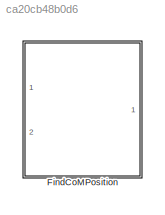
MODEL slx_ca20cb48b0d6
KIND library
CONFIG AbsTol = auto
CONFIG EnableMultiTasking = off
CONFIG FixedStep = auto
CONFIG MaxStep = auto
CONFIG MinStep = auto
CONFIG RelTol = 1e-3
CONFIG SampleTimeConstraint = Unconstrained
CONFIG Solver = VariableStepAuto
CONFIG SolverName = VariableStepAuto
CONFIG StartTime = 0.0
CONFIG StopTime = 10.0
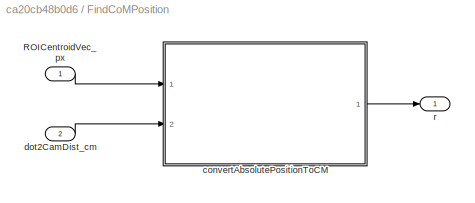
BLOCK [SubSystem] FindCoMPosition
  Ports = [2, 1]
  RequestExecContextInheritance = off
BLOCK [Inport] FindCoMPosition/ROICentroidVec_px
  IconDisplay = Port number
  PortDimensions = 2
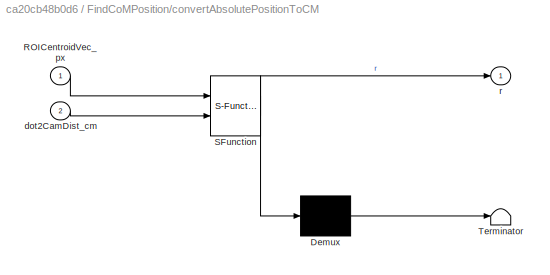
BLOCK [SubSystem] FindCoMPosition/convertAbsolutePositionToCM
  ErrorFcn = Stateflow.Translate.translate
  PermitHierarchicalResolution = ExplicitOnly
  Ports = [2, 1]
  RequestExecContextInheritance = off
  SFBlockType = MATLAB Function
  TreatAsAtomicUnit = on
BLOCK [Demux] FindCoMPosition/convertAbsolutePositionToCM/ Demux 
  Outputs = 1
  Ports = [1, 1]
BLOCK [S-Function] FindCoMPosition/convertAbsolutePositionToCM/ SFunction 
  EnableBusSupport = on
  FunctionName = sf_sfun
  Parameters = cam2GroundRotationMatrix,camPositionVec_cm,cameraViewAngleVec_deg,imageDimensions_px
  PortCounts = [2 2]
  Ports = [2, 2]
  SFcnIsStateOwnerBlock = off
  SFunctionDeploymentMode = off
  Tag = Stateflow S-Function findDotCentroidPosition_ul 18
BLOCK [Terminator] FindCoMPosition/convertAbsolutePositionToCM/ Terminator 
BLOCK [Inport] FindCoMPosition/convertAbsolutePositionToCM/ROICentroidVec_px
  IconDisplay = Port number
BLOCK [Inport] FindCoMPosition/convertAbsolutePositionToCM/dot2CamDist_cm
  IconDisplay = Port number
  Port = 2
BLOCK [Outport] FindCoMPosition/convertAbsolutePositionToCM/r
  IconDisplay = Port number
BLOCK [Inport] FindCoMPosition/dot2CamDist_cm
  IconDisplay = Port number
  Port = 2
  PortDimensions = 1
BLOCK [Outport] FindCoMPosition/r
  IconDisplay = Port number
LINE FindCoMPosition/ROICentroidVec_px:1 -> FindCoMPosition/convertAbsolutePositionToCM:1
LINE FindCoMPosition/convertAbsolutePositionToCM:1 -> FindCoMPosition/r:1
LINE FindCoMPosition/dot2CamDist_cm:1 -> FindCoMPosition/convertAbsolutePositionToCM:2
CHART FindCoMPosition/convertAbsolutePositionToCM states=1 transitions=1
  STATE_LABEL 'eML_blk_kernel()'
  STATE_LABEL 'SCRIPT:\nfunction r = convertAbsolutePositionsToCM(ROICentroidVec_px,dot2CamDist_cm,...\n    camPositionVec_cm, cam2GroundRotationMatrix, imageDimensions_px,...\n    cameraViewAngleVec_deg)\n%#codegen\n% This function calculates the x, y and z position of the dots in the\n% ground fixed coordinates\n\n% INPUTS\n% rCam - 3 element vector of the camera position in the ground fixed frame\n% units:cm\n% xCam - h...<+2378ch>'
